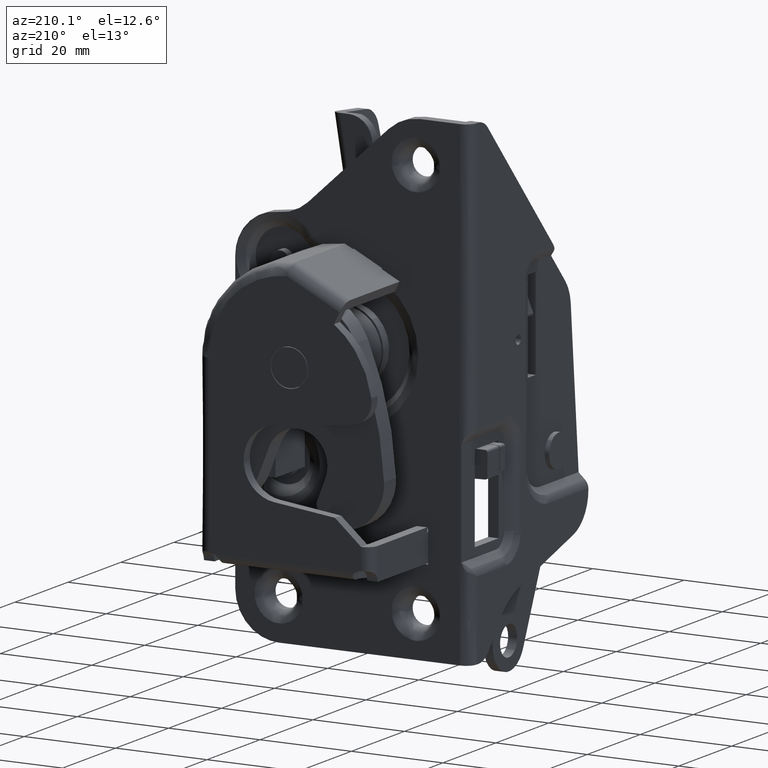
[diagram: clean part render]
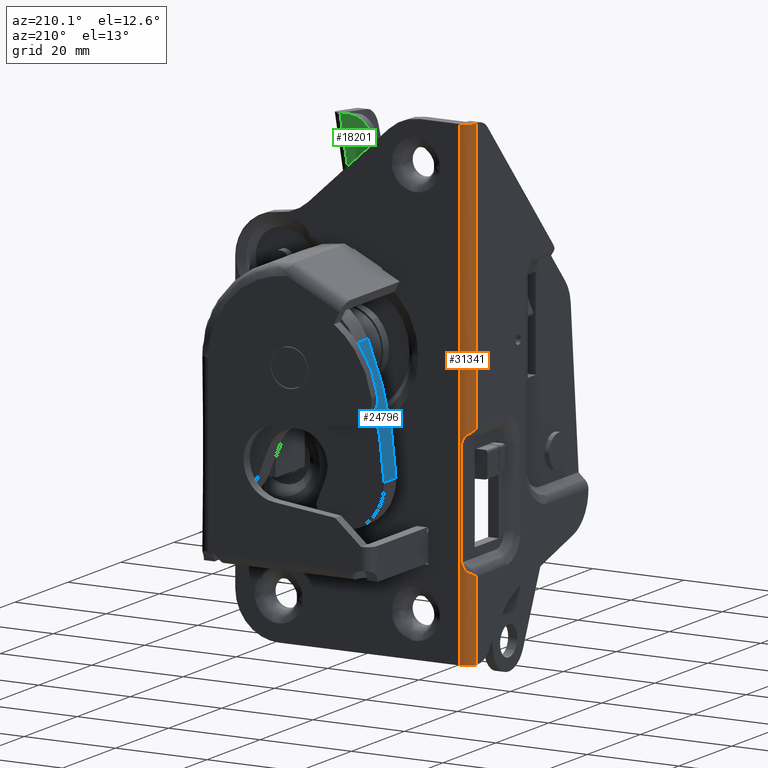
[diagram: same view with three faces highlighted in distinct colors, each labeled with its STEP entity id]
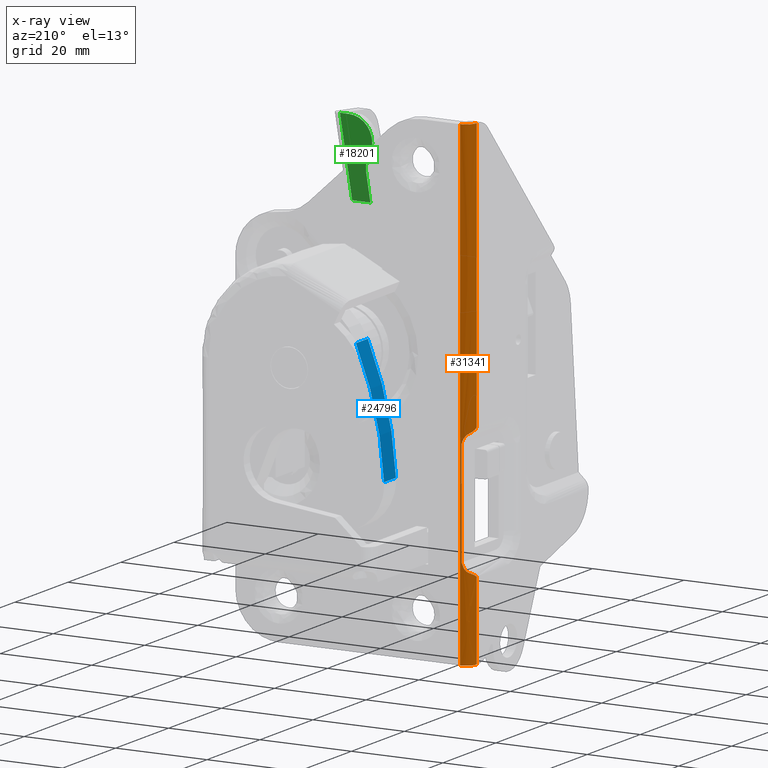
[diagram: x-ray of the same camera — body ghosted, the three highlighted faces saturated]
A machine part, auxiliary view with three faces highlighted in distinct colors.
The next image is the same camera in x-ray (body ghosted, the three faces saturated) — at least one of them is partly hidden behind the body in this view.
Their STEP definitions:

[orange] entity #31341 — the highlighted face is a freeform B-spline surface patch.
#28929=CARTESIAN_POINT('',(1.999999999999885,34.980350850198199,8.0));
#28930=VERTEX_POINT('',#28929);
#28941=CARTESIAN_POINT('',(0.673654403270937,34.326345596728949,10.033452377915600));
#28942=VERTEX_POINT('',#28941);
#28952=CARTESIAN_POINT('',(0.673654403270937,34.326345596728949,10.033452377915600));
#28953=CARTESIAN_POINT('',(0.714670965594976,34.365611594343108,10.009240990905070));
#28954=CARTESIAN_POINT('',(0.795788964243673,34.443267520654842,9.961358400372809));
#28955=CARTESIAN_POINT('',(0.920155735324745,34.542056127798119,9.872821457516363));
#28956=CARTESIAN_POINT('',(1.041795249780460,34.627149727160919,9.773130306713801));
#28957=CARTESIAN_POINT('',(1.159452379312645,34.698729783260070,9.661098032284967));
#28958=CARTESIAN_POINT('',(1.271572179245057,34.758459447408647,9.537060020629573));
#28959=CARTESIAN_POINT('',(1.376950408955657,34.807626807820611,9.400948940044492));
#28960=CARTESIAN_POINT('',(1.505957388978428,34.860359098995438,9.205654869221718));
#28961=CARTESIAN_POINT('',(1.655232845227920,34.910012500426589,8.912180464128033));
#28962=CARTESIAN_POINT('',(1.829939642220309,34.954406127580633,8.492472335554115));
#28963=CARTESIAN_POINT('',(1.939725213680890,34.971155217351772,8.174547820439344));
#28964=CARTESIAN_POINT('',(1.999999999999885,34.980350850198199,8.0));
#28965=B_SPLINE_CURVE_WITH_KNOTS('',3,(#28952,#28953,#28954,#28955,#28956,#28957,#28958,#28959,#28960,#28961,#28962,#28963,#28964),.UNSPECIFIED.,.F.,.U.,(4,1,1,1,1,1,1,1,1,1,4),(0.0,0.070450104292515,0.139328386900223,0.207146682127955,0.274441089274465,0.341760293828452,0.409652443393410,0.478652089434325,0.615425475398951,0.788859802015022,1.0),.UNSPECIFIED.);
#28966=EDGE_CURVE('',#28942,#28930,#28965,.T.);
#28997=CARTESIAN_POINT('',(0.0,32.700000000000003,10.952691193458120));
#28998=VERTEX_POINT('',#28997);
#28999=CARTESIAN_POINT('',(0.0,32.700000000000003,10.952691193458120));
#29000=CARTESIAN_POINT('',(4.336809E-016,33.652691193458054,10.414213562373133));
#29001=CARTESIAN_POINT('',(0.673654403270937,34.326345596728949,10.033452377915600));
#29009=(BOUNDED_CURVE()B_SPLINE_CURVE(2,(#28999,#29000,#29001),.UNSPECIFIED.,.F.,.U.)CURVE()GEOMETRIC_REPRESENTATION_ITEM()QUASI_UNIFORM_CURVE()RATIONAL_B_SPLINE_CURVE((1.0,0.923879532511294,1.0))REPRESENTATION_ITEM(''));
#29010=EDGE_CURVE('',#28998,#28942,#29009,.T.);
#29055=CARTESIAN_POINT('',(0.673654403270938,34.326345596728949,-17.033452377915602));
#29056=VERTEX_POINT('',#29055);
#29068=CARTESIAN_POINT('',(0.0,32.700000000000003,-17.952691193458101));
#29069=VERTEX_POINT('',#29068);
#29070=CARTESIAN_POINT('',(0.673654403270938,34.326345596728949,-17.033452377915602));
#29071=CARTESIAN_POINT('',(0.0,33.652691193458047,-17.414213562373110));
#29072=CARTESIAN_POINT('',(0.0,32.700000000000003,-17.952691193458101));
#29080=(BOUNDED_CURVE()B_SPLINE_CURVE(2,(#29070,#29071,#29072),.UNSPECIFIED.,.F.,.U.)CURVE()GEOMETRIC_REPRESENTATION_ITEM()QUASI_UNIFORM_CURVE()RATIONAL_B_SPLINE_CURVE((1.0,0.923879532511296,1.0))REPRESENTATION_ITEM(''));
#29081=EDGE_CURVE('',#29056,#29069,#29080,.T.);
#29125=CARTESIAN_POINT('',(1.999999999999885,34.980350850198150,-15.0));
#29126=VERTEX_POINT('',#29125);
#29127=CARTESIAN_POINT('',(1.999999999999885,34.980350850198150,-15.0));
#29128=CARTESIAN_POINT('',(1.954077827378646,34.973551169955577,-15.133924837905649));
#29129=CARTESIAN_POINT('',(1.868272943670011,34.960846070454039,-15.384161368240481));
#29130=CARTESIAN_POINT('',(1.733477859751096,34.930457746881473,-15.727129935756830));
#29131=CARTESIAN_POINT('',(1.605608713870047,34.893995684911950,-16.012628304696879));
#29132=CARTESIAN_POINT('',(1.467560882051678,34.845900246517992,-16.271217964366450));
#29133=CARTESIAN_POINT('',(1.302141942579663,34.775914857413859,-16.507006983543921));
#29134=CARTESIAN_POINT('',(1.102734853027191,34.668210872364661,-16.722766711242748));
#29135=CARTESIAN_POINT('',(0.887013279947960,34.523952299046172,-16.903657229947189));
#29136=CARTESIAN_POINT('',(0.745486636255733,34.392874493493387,-16.989753819625580));
#29137=CARTESIAN_POINT('',(0.673654403270938,34.326345596728949,-17.033452377915602));
#29138=B_SPLINE_CURVE_WITH_KNOTS('',3,(#29127,#29128,#29129,#29130,#29131,#29132,#29133,#29134,#29135,#29136,#29137),.UNSPECIFIED.,.F.,.U.,(4,1,1,1,1,1,1,1,4),(0.0,0.161953273024835,0.302607236655062,0.422302877877345,0.521597340540059,0.641530042461306,0.759298559474387,0.877831329108520,1.0),.UNSPECIFIED.);
#29139=EDGE_CURVE('',#29126,#29056,#29138,.T.);
#31269=CARTESIAN_POINT('',(2.360206981108082,34.999211847443782,72.625000000000000));
#31270=CARTESIAN_POINT('',(2.360206981108082,34.999211847443782,-37.690624999999997));
#31271=CARTESIAN_POINT('',(-0.105395861808673,35.063775930109138,72.625000000000000));
#31272=CARTESIAN_POINT('',(-0.105395861808673,35.063775930109138,-37.690624999999990));
#31273=CARTESIAN_POINT('',(0.002189090361728,32.599675409059699,72.625000000000000));
#31274=CARTESIAN_POINT('',(0.002189090361728,32.599675409059699,-37.690624999999997));
#31282=(BOUNDED_SURFACE()B_SPLINE_SURFACE(1,2,((#31269,#31271,#31273),(#31270,#31272,#31274)),.UNSPECIFIED.,.F.,.F.,.U.)B_SPLINE_SURFACE_WITH_KNOTS((2,2),(3,3),(0.0,110.315625000000000),(0.0,4.000273849640589),.UNSPECIFIED.)GEOMETRIC_REPRESENTATION_ITEM()RATIONAL_B_SPLINE_SURFACE(((1.0,0.681998360062498,1.0),(1.0,0.681998360062498,1.0)))REPRESENTATION_ITEM('')SURFACE());
#31283=ORIENTED_EDGE('',*,*,#29139,.F.);
#31284=CARTESIAN_POINT('',(1.999999999999885,34.980350850198150,-15.0));
#31285=CARTESIAN_POINT('',(1.999999999999885,34.980350850198199,8.0));
#31286=QUASI_UNIFORM_CURVE('',1,(#31284,#31285),.UNSPECIFIED.,.F.,.U.);
#31287=EDGE_CURVE('',#29126,#28930,#31286,.T.);
#31288=ORIENTED_EDGE('',*,*,#31287,.T.);
#31289=ORIENTED_EDGE('',*,*,#28966,.F.);
#31290=ORIENTED_EDGE('',*,*,#29010,.F.);
#31291=CARTESIAN_POINT('',(0.0,32.700000000000003,70.0));
#31292=VERTEX_POINT('',#31291);
#31293=CARTESIAN_POINT('',(0.0,32.700000000000003,10.952691193458120));
#31294=CARTESIAN_POINT('',(0.0,32.700000000000003,70.0));
#31295=QUASI_UNIFORM_CURVE('',1,(#31293,#31294),.UNSPECIFIED.,.F.,.U.);
#31296=EDGE_CURVE('',#28998,#31292,#31295,.T.);
#31297=ORIENTED_EDGE('',*,*,#31296,.T.);
#31298=CARTESIAN_POINT('',(2.299999999999970,35.0,70.0));
#31299=VERTEX_POINT('',#31298);
#31300=CARTESIAN_POINT('',(0.0,32.700000000000003,70.0));
#31301=CARTESIAN_POINT('',(-0.000292281944841,33.001125415477823,70.000000000000043));
#31302=CARTESIAN_POINT('',(0.089957399976825,33.452468963232469,70.000000000000043));
#31303=CARTESIAN_POINT('',(0.384230501985482,34.002700901220578,69.999999999999957));
#31304=CARTESIAN_POINT('',(0.761958939599808,34.451923669967762,70.000000000000227));
#31305=CARTESIAN_POINT('',(1.222364018183635,34.759574756990567,69.999999999999602));
#31306=CARTESIAN_POINT('',(1.773178143623667,34.956485660913593,70.000000000000497));
#31307=CARTESIAN_POINT('',(2.093009066831921,35.000080104006692,69.999999999999929));
#31308=CARTESIAN_POINT('',(2.299999999999970,35.0,70.0));
#31309=B_SPLINE_CURVE_WITH_KNOTS('',3,(#31300,#31301,#31302,#31303,#31304,#31305,#31306,#31307,#31308),.UNSPECIFIED.,.F.,.U.,(4,1,1,1,1,1,4),(0.000000160722272,0.903232169567387,1.354853312329537,1.862892223597701,2.653236676292219,2.991964584488287,3.612922211977837),.UNSPECIFIED.);
#31310=EDGE_CURVE('',#31292,#31299,#31309,.T.);
#31311=ORIENTED_EDGE('',*,*,#31310,.T.);
#31312=CARTESIAN_POINT('',(2.299999999999970,35.0,-35.0));
#31313=VERTEX_POINT('',#31312);
#31314=CARTESIAN_POINT('',(2.299999999999970,35.0,70.0));
#31315=CARTESIAN_POINT('',(2.299999999999970,35.0,-35.0));
#31316=QUASI_UNIFORM_CURVE('',1,(#31314,#31315),.UNSPECIFIED.,.F.,.U.);
#31317=EDGE_CURVE('',#31299,#31313,#31316,.T.);
#31318=ORIENTED_EDGE('',*,*,#31317,.T.);
#31319=CARTESIAN_POINT('',(0.0,32.700000000000003,-35.0));
#31320=VERTEX_POINT('',#31319);
#31321=CARTESIAN_POINT('',(2.299999999999970,35.0,-35.0));
#31322=CARTESIAN_POINT('',(2.017713290279780,35.000217228648943,-35.000000000000021));
#31323=CARTESIAN_POINT('',(1.566297569864972,34.915802335771957,-34.999999999999957));
#31324=CARTESIAN_POINT('',(0.944486115638245,34.593156986546639,-35.000000000000050));
#31325=CARTESIAN_POINT('',(0.525611977393510,34.204127434928203,-34.999999999999943));
#31326=CARTESIAN_POINT('',(0.232348944536656,33.740765431137881,-35.000000000000149));
#31327=CARTESIAN_POINT('',(0.048611508801553,33.264461737364662,-34.999999999999922));
#31328=CARTESIAN_POINT('',(-0.000078381710821,32.906992672920822,-35.000000000000007));
#31329=CARTESIAN_POINT('',(0.0,32.700000000000003,-35.0));
#31330=B_SPLINE_CURVE_WITH_KNOTS('',3,(#31321,#31322,#31323,#31324,#31325,#31326,#31327,#31328,#31329),.UNSPECIFIED.,.F.,.U.,(4,1,1,1,1,1,4),(0.000000160718726,0.846777111192262,1.354853312327816,2.088694378349215,2.540335843917194,2.991964584487978,3.612922211977840),.UNSPECIFIED.);
#31331=EDGE_CURVE('',#31313,#31320,#31330,.T.);
#31332=ORIENTED_EDGE('',*,*,#31331,.T.);
#31333=CARTESIAN_POINT('',(0.0,32.700000000000003,-35.0));
#31334=CARTESIAN_POINT('',(0.0,32.700000000000003,-17.952691193458101));
#31335=QUASI_UNIFORM_CURVE('',1,(#31333,#31334),.UNSPECIFIED.,.F.,.U.);
#31336=EDGE_CURVE('',#31320,#29069,#31335,.T.);
#31337=ORIENTED_EDGE('',*,*,#31336,.T.);
#31338=ORIENTED_EDGE('',*,*,#29081,.F.);
#31339=EDGE_LOOP('',(#31283,#31288,#31289,#31290,#31297,#31311,#31318,#31332,#31337,#31338));
#31340=FACE_OUTER_BOUND('',#31339,.T.);
#31341=ADVANCED_FACE('',(#31340),#31282,.T.);

[blue] entity #24796 — the highlighted face is a freeform B-spline surface patch.
#24614=CARTESIAN_POINT('',(8.512113658407371,53.0,3.326774216906520));
#24615=VERTEX_POINT('',#24614);
#24628=CARTESIAN_POINT('',(14.665646308671921,53.0,29.592664486145850));
#24629=VERTEX_POINT('',#24628);
#24630=CARTESIAN_POINT('',(8.512113658407371,53.0,3.326774216906520));
#24631=CARTESIAN_POINT('',(8.675578434834193,52.999999999999972,6.642702806379833));
#24632=CARTESIAN_POINT('',(9.247851487085821,53.000000000000007,11.565039314369450));
#24633=CARTESIAN_POINT('',(11.174184142088651,53.000000000000043,20.403912201061470));
#24634=CARTESIAN_POINT('',(13.028634082649440,53.000000000000291,25.836937166757629));
#24635=CARTESIAN_POINT('',(14.665646308671921,53.0,29.592664486145850));
#24636=B_SPLINE_CURVE_WITH_KNOTS('',3,(#24630,#24631,#24632,#24633,#24634,#24635),.UNSPECIFIED.,.F.,.U.,(4,1,1,4),(2.002970E-009,9.959843647791374,14.833802657814910,27.124678543220000),.UNSPECIFIED.);
#24637=EDGE_CURVE('',#24615,#24629,#24636,.T.);
#24725=CARTESIAN_POINT('',(14.665646308671921,48.500000000000000,29.592664486145850));
#24726=VERTEX_POINT('',#24725);
#24754=CARTESIAN_POINT('',(14.665646308671921,53.0,29.592664486145850));
#24755=CARTESIAN_POINT('',(14.665646308671921,48.500000000000000,29.592664486145850));
#24756=QUASI_UNIFORM_CURVE('',1,(#24754,#24755),.UNSPECIFIED.,.F.,.U.);
#24757=EDGE_CURVE('',#24629,#24726,#24756,.T.);
#24762=CARTESIAN_POINT('',(15.213293315302707,48.387500000000003,30.819279029377338));
#24763=CARTESIAN_POINT('',(15.213293315302707,53.115312500000009,30.819279029377338));
#24764=CARTESIAN_POINT('',(8.930628165872248,48.387500000000003,17.079303787175625));
#24765=CARTESIAN_POINT('',(8.930628165872248,53.115312500000002,17.079303787175625));
#24766=CARTESIAN_POINT('',(8.457746435069200,48.387499999999989,1.978469906066388));
#24767=CARTESIAN_POINT('',(8.457746435069200,53.115312500000002,1.978469906066388));
#24775=(BOUNDED_SURFACE()B_SPLINE_SURFACE(1,2,((#24762,#24764,#24766),(#24763,#24765,#24767)),.UNSPECIFIED.,.F.,.F.,.U.)B_SPLINE_SURFACE_WITH_KNOTS((2,2),(3,3),(0.0,4.727812500000005),(0.0,29.915955245418790),.UNSPECIFIED.)GEOMETRIC_REPRESENTATION_ITEM()RATIONAL_B_SPLINE_SURFACE(((0.998491263611346,0.976516871229825,0.993780412803863),(0.998491263611346,0.976516871229825,0.993780412803863)))REPRESENTATION_ITEM('')SURFACE());
#24776=CARTESIAN_POINT('',(8.512113658407371,48.500000000000000,3.326774216906520));
#24777=VERTEX_POINT('',#24776);
#24778=CARTESIAN_POINT('',(8.512113658407371,48.500000000000000,3.326774216906520));
#24779=CARTESIAN_POINT('',(8.720614526361063,48.500000000000171,7.559900624712868));
#24780=CARTESIAN_POINT('',(9.592883081698414,48.499999999999673,14.023261735661800));
#24781=CARTESIAN_POINT('',(11.955095308676979,48.500000000000398,22.760380703613571));
#24782=CARTESIAN_POINT('',(13.649726130722710,48.499999999999822,27.261473992287279));
#24783=CARTESIAN_POINT('',(14.665646308671921,48.500000000000000,29.592664486145850));
#24784=B_SPLINE_CURVE_WITH_KNOTS('',3,(#24778,#24779,#24780,#24781,#24782,#24783),.UNSPECIFIED.,.F.,.U.,(4,1,1,4),(2.002970E-009,12.714697650919719,19.495861975283258,27.124678543220000),.UNSPECIFIED.);
#24785=EDGE_CURVE('',#24777,#24726,#24784,.T.);
#24786=ORIENTED_EDGE('',*,*,#24785,.T.);
#24787=ORIENTED_EDGE('',*,*,#24757,.F.);
#24788=ORIENTED_EDGE('',*,*,#24637,.F.);
#24789=CARTESIAN_POINT('',(8.512113658407371,53.0,3.326774216906520));
#24790=CARTESIAN_POINT('',(8.512113658407371,48.500000000000000,3.326774216906520));
#24791=QUASI_UNIFORM_CURVE('',1,(#24789,#24790),.UNSPECIFIED.,.F.,.U.);
#24792=EDGE_CURVE('',#24615,#24777,#24791,.T.);
#24793=ORIENTED_EDGE('',*,*,#24792,.T.);
#24794=EDGE_LOOP('',(#24786,#24787,#24788,#24793));
#24795=FACE_OUTER_BOUND('',#24794,.T.);
#24796=ADVANCED_FACE('',(#24795),#24775,.T.);

[green] entity #18201 — the highlighted face is a freeform B-spline surface patch.
#16440=CARTESIAN_POINT('',(34.590096157871102,20.046487996967400,48.716555795156587));
#16441=VERTEX_POINT('',#16440);
#16489=CARTESIAN_POINT('',(36.987416775523997,20.500000000000000,65.500000000000000));
#16490=VERTEX_POINT('',#16489);
#16512=CARTESIAN_POINT('',(34.590096157871102,20.046487996967400,48.716555795156587));
#16513=CARTESIAN_POINT('',(36.987416775523997,20.500000000000000,65.500000000000000));
#16514=QUASI_UNIFORM_CURVE('',1,(#16512,#16513),.UNSPECIFIED.,.F.,.U.);
#16515=EDGE_CURVE('',#16441,#16490,#16514,.T.);
#17266=CARTESIAN_POINT('',(35.000104474341050,20.500000000000000,65.500000000000000));
#17267=VERTEX_POINT('',#17266);
#17281=CARTESIAN_POINT('',(30.743052237170350,20.294029449442800,57.877499999999998));
#17282=VERTEX_POINT('',#17281);
#17283=CARTESIAN_POINT('',(35.000104474341050,20.499999999999911,65.500000000000000));
#17284=CARTESIAN_POINT('',(32.065607427489589,20.499999999999911,65.500000000000000));
#17285=CARTESIAN_POINT('',(30.634757981793179,20.430770676121501,62.937980721826982));
#17286=CARTESIAN_POINT('',(29.203908536096765,20.361541352243076,60.375961443653949));
#17287=CARTESIAN_POINT('',(30.743052237170350,20.294029449442800,57.877499999999998));
#17295=(BOUNDED_CURVE()B_SPLINE_CURVE(2,(#17283,#17284,#17285,#17286,#17287),.UNSPECIFIED.,.F.,.U.)B_SPLINE_CURVE_WITH_KNOTS((3,2,3),(0.0,0.500000000000000,1.0),.UNSPECIFIED.)CURVE()GEOMETRIC_REPRESENTATION_ITEM()RATIONAL_B_SPLINE_CURVE((1.0,0.862437285941822,1.0,0.862437285941822,1.0))REPRESENTATION_ITEM(''));
#17296=EDGE_CURVE('',#17267,#17282,#17295,.T.);
#17321=CARTESIAN_POINT('',(31.422733587109409,20.201741084462501,54.462118237123200));
#17322=VERTEX_POINT('',#17321);
#17323=CARTESIAN_POINT('',(31.422733587109409,20.201741084462501,54.462118237123200));
#17324=CARTESIAN_POINT('',(31.484513679502481,20.212120030371661,54.846219337881202));
#17325=CARTESIAN_POINT('',(31.510524946082700,20.228735807043631,55.461131311167620));
#17326=CARTESIAN_POINT('',(31.343815633905471,20.260527228562601,56.637659265640963));
#17327=CARTESIAN_POINT('',(31.044677748683039,20.280820194294719,57.388655613780202));
#17328=CARTESIAN_POINT('',(30.743052237170350,20.294029449442800,57.877499999999998));
#17329=B_SPLINE_CURVE_WITH_KNOTS('',3,(#17323,#17324,#17325,#17326,#17327,#17328),.UNSPECIFIED.,.F.,.U.,(4,1,1,4),(0.000000027399773,1.167505132427683,1.834624688697595,3.558098717650487),.UNSPECIFIED.);
#17330=EDGE_CURVE('',#17322,#17282,#17329,.T.);
#17382=CARTESIAN_POINT('',(30.602100208855902,20.046487996967400,48.716555795156587));
#17383=VERTEX_POINT('',#17382);
#17384=CARTESIAN_POINT('',(31.422733587109409,20.201741084462501,54.462118237123200));
#17385=CARTESIAN_POINT('',(30.602100208855902,20.046487996967400,48.716555795156587));
#17386=QUASI_UNIFORM_CURVE('',1,(#17384,#17385),.UNSPECIFIED.,.F.,.U.);
#17387=EDGE_CURVE('',#17322,#17383,#17386,.T.);
#18175=CARTESIAN_POINT('',(34.590096157871102,20.046487996967400,48.716555795156587));
#18176=CARTESIAN_POINT('',(30.602100208855902,20.046487996967400,48.716555795156587));
#18177=QUASI_UNIFORM_CURVE('',1,(#18175,#18176),.UNSPECIFIED.,.F.,.U.);
#18178=EDGE_CURVE('',#16441,#17383,#18177,.T.);
#18184=CARTESIAN_POINT('',(29.651597392419731,20.522652922052220,66.338332945540103));
#18185=CARTESIAN_POINT('',(29.651597392419731,20.023835095188730,47.878223599894902));
#18186=CARTESIAN_POINT('',(37.336407406091411,20.522652922052220,66.338332945540103));
#18187=CARTESIAN_POINT('',(37.336407406091411,20.023835095188730,47.878223599894902));
#18188=B_SPLINE_SURFACE_WITH_KNOTS('',1,1,((#18184,#18186),(#18185,#18187)),.UNSPECIFIED.,.F.,.F.,.U.,(2,2),(2,2),(0.0,18.466847491588108),(0.0,7.684810013671680),.UNSPECIFIED.);
#18189=ORIENTED_EDGE('',*,*,#18178,.T.);
#18190=ORIENTED_EDGE('',*,*,#17387,.F.);
#18191=ORIENTED_EDGE('',*,*,#17330,.T.);
#18192=ORIENTED_EDGE('',*,*,#17296,.F.);
#18193=CARTESIAN_POINT('',(36.987416775523997,20.500000000000000,65.500000000000000));
#18194=CARTESIAN_POINT('',(35.000104474341050,20.500000000000000,65.500000000000000));
#18195=QUASI_UNIFORM_CURVE('',1,(#18193,#18194),.UNSPECIFIED.,.F.,.U.);
#18196=EDGE_CURVE('',#16490,#17267,#18195,.T.);
#18197=ORIENTED_EDGE('',*,*,#18196,.F.);
#18198=ORIENTED_EDGE('',*,*,#16515,.F.);
#18199=EDGE_LOOP('',(#18189,#18190,#18191,#18192,#18197,#18198));
#18200=FACE_OUTER_BOUND('',#18199,.T.);
#18201=ADVANCED_FACE('',(#18200),#18188,.F.);